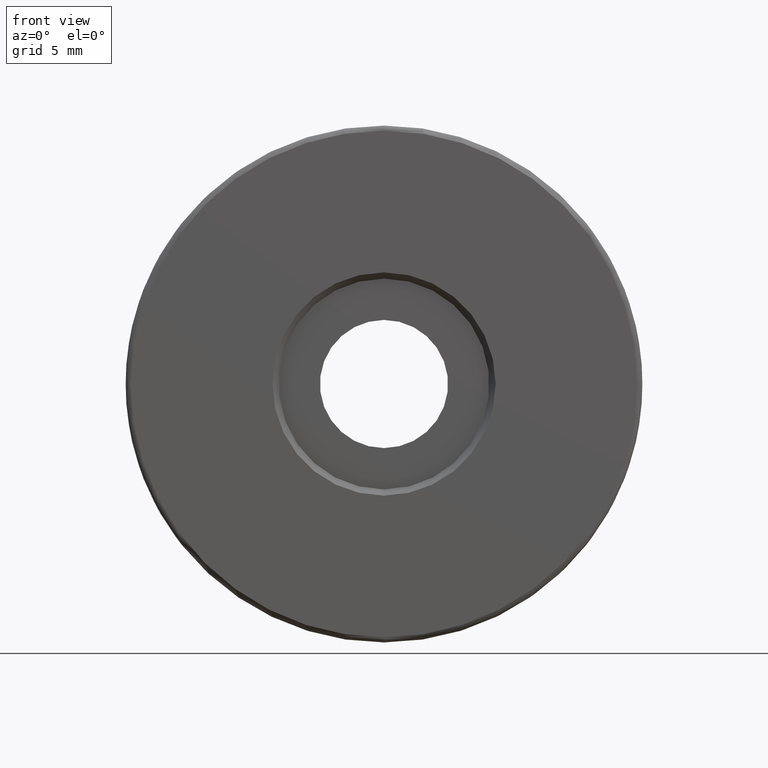
[diagram: clean part render]
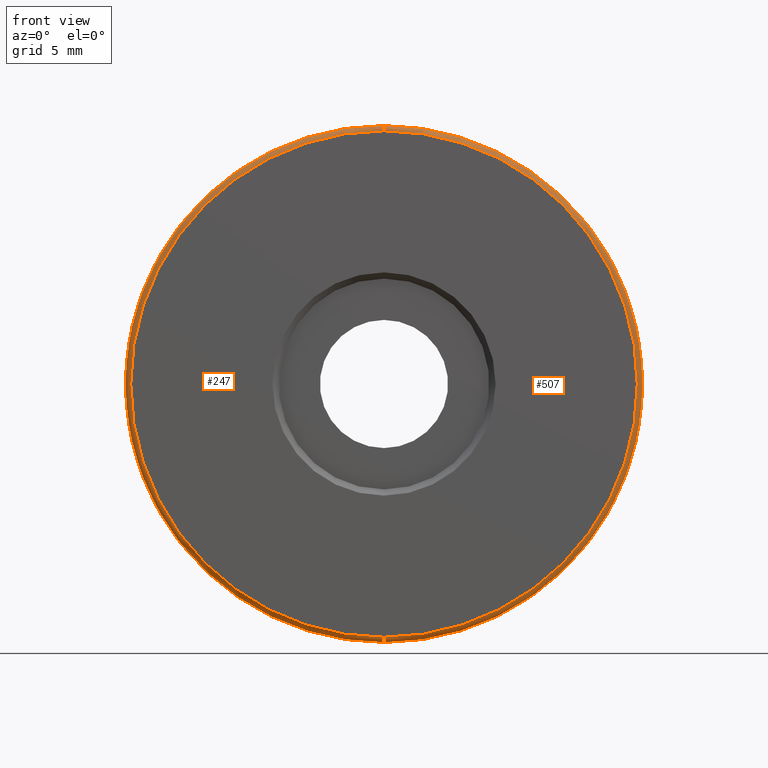
[diagram: same view with one multi-face feature highlighted, each face labeled with its STEP entity id]
A machine part, front view. The highlighted faces form ONE feature: a constant-radius fillet chain: 2 tangent blend faces with common blend radius 0.25 mm. The faces share edges in the B-rep.
Their STEP definitions:
[1] entity #507 (Torus):
#3 = AXIS2_PLACEMENT_3D ( 'NONE', #15, #168, #432 ) ;
#10 = EDGE_CURVE ( 'NONE', #267, #476, #139, .T. ) ;
#15 = CARTESIAN_POINT ( 'NONE',  ( -4.682026255059964726, -2.094975976998274536, 25.00000000000000000 ) ) ;
#28 = DIRECTION ( 'NONE',  ( 0.0000000000000000000, 1.000000000000000000, 0.0000000000000000000 ) ) ;
#33 = EDGE_CURVE ( 'NONE', #476, #43, #355, .T. ) ;
#43 = VERTEX_POINT ( 'NONE', #209 ) ;
#44 = CIRCLE ( 'NONE', #448, 0.2500000000000002220 ) ;
#83 = CARTESIAN_POINT ( 'NONE',  ( -4.682026255059964726, -2.344975976998274980, 25.00000000000000000 ) ) ;
#85 = FACE_OUTER_BOUND ( 'NONE', #239, .T. ) ;
#95 = CARTESIAN_POINT ( 'NONE',  ( -4.682026255059964726, -2.094975976998274536, 37.25000000000000711 ) ) ;
#130 = AXIS2_PLACEMENT_3D ( 'NONE', #95, #496, #212 ) ;
#139 = CIRCLE ( 'NONE', #508, 12.25000000000000355 ) ;
#150 = EDGE_CURVE ( 'NONE', #43, #207, #428, .T. ) ;
#158 = EDGE_CURVE ( 'NONE', #267, #207, #44, .T. ) ;
#168 = DIRECTION ( 'NONE',  ( 0.0000000000000000000, 1.000000000000000000, 0.0000000000000000000 ) ) ;
#185 = CARTESIAN_POINT ( 'NONE',  ( -4.682026255059964726, -2.094975976998274536, 12.50000000000000000 ) ) ;
#193 = ORIENTED_EDGE ( 'NONE', *, *, #150, .F. ) ;
#205 = AXIS2_PLACEMENT_3D ( 'NONE', #460, #28, #379 ) ;
#207 = VERTEX_POINT ( 'NONE', #185 ) ;
#209 = CARTESIAN_POINT ( 'NONE',  ( -4.682026255059962949, -2.094975976998274536, 37.50000000000000711 ) ) ;
#212 = DIRECTION ( 'NONE',  ( 0.0000000000000000000, 0.0000000000000000000, 1.000000000000000000 ) ) ;
#219 = DIRECTION ( 'NONE',  ( 1.000000000000000000, -0.0000000000000000000, 1.224646799147353207E-16 ) ) ;
#239 = EDGE_LOOP ( 'NONE', ( #513, #503, #193, #481 ) ) ;
#245 = TOROIDAL_SURFACE ( 'NONE', #3, 12.25000000000000000, 0.2500000000000000000 ) ;
#261 = CARTESIAN_POINT ( 'NONE',  ( -4.682026255059962949, -2.344975976998274980, 12.75000000000000178 ) ) ;
#267 = VERTEX_POINT ( 'NONE', #261 ) ;
#318 = DIRECTION ( 'NONE',  ( -0.0000000000000000000, -1.000000000000000000, -0.0000000000000000000 ) ) ;
#355 = CIRCLE ( 'NONE', #130, 0.2500000000000002220 ) ;
#356 = DIRECTION ( 'NONE',  ( 0.0000000000000000000, 0.0000000000000000000, 1.000000000000000000 ) ) ;
#377 = DIRECTION ( 'NONE',  ( 0.0000000000000000000, 0.0000000000000000000, -1.000000000000000000 ) ) ;
#379 = DIRECTION ( 'NONE',  ( 0.0000000000000000000, 0.0000000000000000000, 1.000000000000000000 ) ) ;
#404 = CARTESIAN_POINT ( 'NONE',  ( -4.682026255059964726, -2.344975976998274980, 37.25000000000000711 ) ) ;
#428 = CIRCLE ( 'NONE', #205, 12.50000000000000355 ) ;
#432 = DIRECTION ( 'NONE',  ( 0.0000000000000000000, 0.0000000000000000000, 1.000000000000000000 ) ) ;
#448 = AXIS2_PLACEMENT_3D ( 'NONE', #501, #219, #377 ) ;
#460 = CARTESIAN_POINT ( 'NONE',  ( -4.682026255059964726, -2.094975976998274536, 25.00000000000000000 ) ) ;
#476 = VERTEX_POINT ( 'NONE', #404 ) ;
#481 = ORIENTED_EDGE ( 'NONE', *, *, #33, .F. ) ;
#496 = DIRECTION ( 'NONE',  ( -1.000000000000000000, 0.0000000000000000000, 0.0000000000000000000 ) ) ;
#501 = CARTESIAN_POINT ( 'NONE',  ( -4.682026255059962949, -2.094975976998274536, 12.75000000000000178 ) ) ;
#503 = ORIENTED_EDGE ( 'NONE', *, *, #158, .T. ) ;
#507 = ADVANCED_FACE ( 'NONE', ( #85 ), #245, .T. ) ;
#508 = AXIS2_PLACEMENT_3D ( 'NONE', #83, #318, #356 ) ;
#513 = ORIENTED_EDGE ( 'NONE', *, *, #10, .F. ) ;
[2] entity #247 (Torus):
#29 = TOROIDAL_SURFACE ( 'NONE', #106, 12.25000000000000000, 0.2500000000000000000 ) ;
#31 = CARTESIAN_POINT ( 'NONE',  ( -4.682026255059964726, -2.344975976998274980, 25.00000000000000000 ) ) ;
#33 = EDGE_CURVE ( 'NONE', #476, #43, #355, .T. ) ;
#43 = VERTEX_POINT ( 'NONE', #209 ) ;
#44 = CIRCLE ( 'NONE', #448, 0.2500000000000002220 ) ;
#88 = ORIENTED_EDGE ( 'NONE', *, *, #158, .F. ) ;
#95 = CARTESIAN_POINT ( 'NONE',  ( -4.682026255059964726, -2.094975976998274536, 37.25000000000000711 ) ) ;
#106 = AXIS2_PLACEMENT_3D ( 'NONE', #148, #466, #109 ) ;
#109 = DIRECTION ( 'NONE',  ( 0.0000000000000000000, 0.0000000000000000000, 1.000000000000000000 ) ) ;
#114 = AXIS2_PLACEMENT_3D ( 'NONE', #360, #486, #363 ) ;
#118 = ORIENTED_EDGE ( 'NONE', *, *, #33, .T. ) ;
#130 = AXIS2_PLACEMENT_3D ( 'NONE', #95, #496, #212 ) ;
#148 = CARTESIAN_POINT ( 'NONE',  ( -4.682026255059964726, -2.094975976998274536, 25.00000000000000000 ) ) ;
#149 = EDGE_LOOP ( 'NONE', ( #88, #351, #118, #315 ) ) ;
#158 = EDGE_CURVE ( 'NONE', #267, #207, #44, .T. ) ;
#183 = DIRECTION ( 'NONE',  ( -0.0000000000000000000, -1.000000000000000000, -0.0000000000000000000 ) ) ;
#185 = CARTESIAN_POINT ( 'NONE',  ( -4.682026255059964726, -2.094975976998274536, 12.50000000000000000 ) ) ;
#207 = VERTEX_POINT ( 'NONE', #185 ) ;
#209 = CARTESIAN_POINT ( 'NONE',  ( -4.682026255059962949, -2.094975976998274536, 37.50000000000000711 ) ) ;
#212 = DIRECTION ( 'NONE',  ( 0.0000000000000000000, 0.0000000000000000000, 1.000000000000000000 ) ) ;
#219 = DIRECTION ( 'NONE',  ( 1.000000000000000000, -0.0000000000000000000, 1.224646799147353207E-16 ) ) ;
#247 = ADVANCED_FACE ( 'NONE', ( #268 ), #29, .T. ) ;
#253 = CIRCLE ( 'NONE', #307, 12.25000000000000355 ) ;
#261 = CARTESIAN_POINT ( 'NONE',  ( -4.682026255059962949, -2.344975976998274980, 12.75000000000000178 ) ) ;
#267 = VERTEX_POINT ( 'NONE', #261 ) ;
#268 = FACE_OUTER_BOUND ( 'NONE', #149, .T. ) ;
#307 = AXIS2_PLACEMENT_3D ( 'NONE', #31, #183, #342 ) ;
#315 = ORIENTED_EDGE ( 'NONE', *, *, #434, .F. ) ;
#342 = DIRECTION ( 'NONE',  ( 0.0000000000000000000, 0.0000000000000000000, 1.000000000000000000 ) ) ;
#351 = ORIENTED_EDGE ( 'NONE', *, *, #359, .F. ) ;
#355 = CIRCLE ( 'NONE', #130, 0.2500000000000002220 ) ;
#359 = EDGE_CURVE ( 'NONE', #476, #267, #253, .T. ) ;
#360 = CARTESIAN_POINT ( 'NONE',  ( -4.682026255059964726, -2.094975976998274536, 25.00000000000000000 ) ) ;
#363 = DIRECTION ( 'NONE',  ( 0.0000000000000000000, 0.0000000000000000000, 1.000000000000000000 ) ) ;
#377 = DIRECTION ( 'NONE',  ( 0.0000000000000000000, 0.0000000000000000000, -1.000000000000000000 ) ) ;
#404 = CARTESIAN_POINT ( 'NONE',  ( -4.682026255059964726, -2.344975976998274980, 37.25000000000000711 ) ) ;
#429 = CIRCLE ( 'NONE', #114, 12.50000000000000355 ) ;
#434 = EDGE_CURVE ( 'NONE', #207, #43, #429, .T. ) ;
#448 = AXIS2_PLACEMENT_3D ( 'NONE', #501, #219, #377 ) ;
#466 = DIRECTION ( 'NONE',  ( 0.0000000000000000000, 1.000000000000000000, 0.0000000000000000000 ) ) ;
#476 = VERTEX_POINT ( 'NONE', #404 ) ;
#486 = DIRECTION ( 'NONE',  ( 0.0000000000000000000, 1.000000000000000000, 0.0000000000000000000 ) ) ;
#496 = DIRECTION ( 'NONE',  ( -1.000000000000000000, 0.0000000000000000000, 0.0000000000000000000 ) ) ;
#501 = CARTESIAN_POINT ( 'NONE',  ( -4.682026255059962949, -2.094975976998274536, 12.75000000000000178 ) ) ;